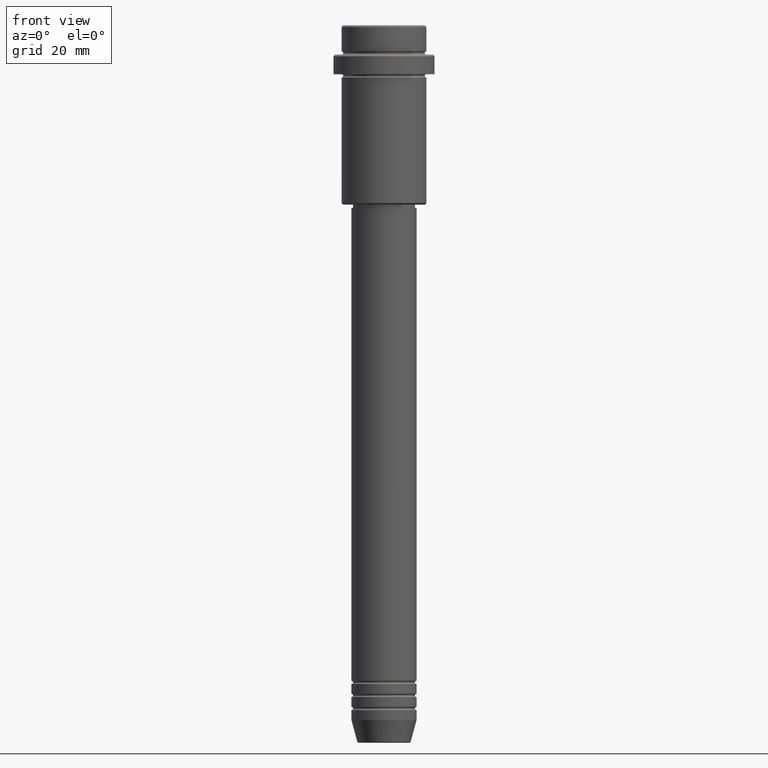
[diagram: clean part render]
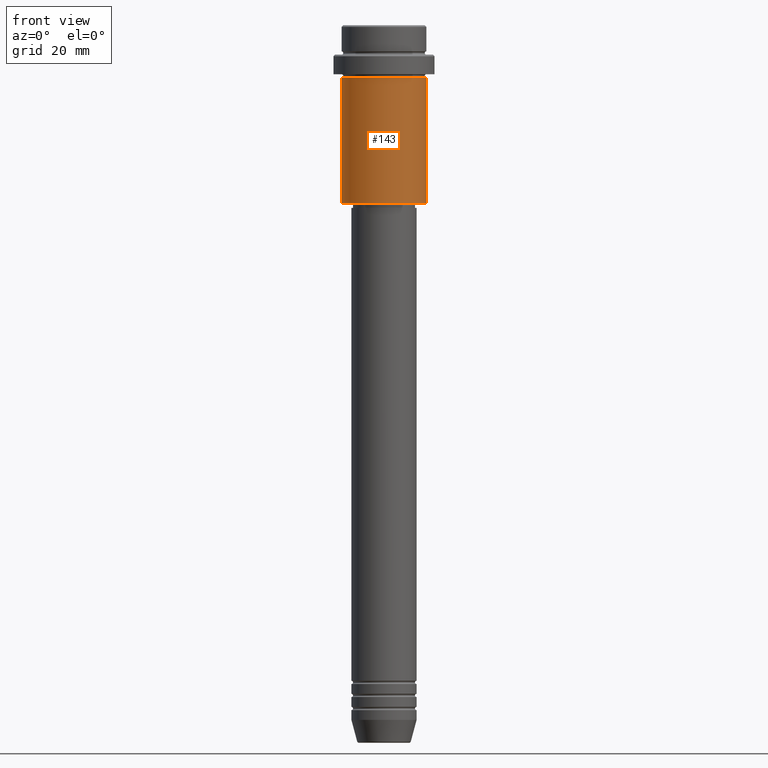
[diagram: same view with one face highlighted and labeled with its STEP entity id]
A machine part, front view. The second image highlights one B-rep face of the part: STEP entity #143.
In plain terms, the highlighted cylindrical surface (partial cylindrical patch) has radius 13 mm, axis along (-0, -0, 1).
Its self-contained STEP definition (entity closure, byte-faithful):
#24 = EDGE_CURVE ( 'NONE', #1273, #68, #181, .T. ) ;
#64 = DIRECTION ( 'NONE',  ( 1.000000000000000000, 0.000000000000000000, 0.000000000000000000 ) ) ;
#68 = VERTEX_POINT ( 'NONE', #608 ) ;
#84 = DIRECTION ( 'NONE',  ( -0.000000000000000000, -0.000000000000000000, 1.000000000000000000 ) ) ;
#96 = LINE ( 'NONE', #636, #994 ) ;
#110 = DIRECTION ( 'NONE',  ( -0.000000000000000000, -0.000000000000000000, 1.000000000000000000 ) ) ;
#143 = ADVANCED_FACE ( 'NONE', ( #309 ), #1172, .T. ) ;
#176 = ORIENTED_EDGE ( 'NONE', *, *, #24, .F. ) ;
#181 = LINE ( 'NONE', #1234, #1235 ) ;
#196 = CARTESIAN_POINT ( 'NONE',  ( 0.000000000000000000, 0.000000000000000000, 0.000000000000000000 ) ) ;
#257 = CARTESIAN_POINT ( 'NONE',  ( 0.000000000000000000, 0.000000000000000000, -54.50000000000002132 ) ) ;
#260 = CIRCLE ( 'NONE', #1092, 13.00000000000000000 ) ;
#290 = ORIENTED_EDGE ( 'NONE', *, *, #674, .F. ) ;
#300 = DIRECTION ( 'NONE',  ( -0.000000000000000000, -0.000000000000000000, 1.000000000000000000 ) ) ;
#309 = FACE_OUTER_BOUND ( 'NONE', #915, .T. ) ;
#383 = DIRECTION ( 'NONE',  ( -1.000000000000000000, 0.000000000000000000, 0.000000000000000000 ) ) ;
#421 = AXIS2_PLACEMENT_3D ( 'NONE', #196, #84, #64 ) ;
#573 = EDGE_CURVE ( 'NONE', #862, #870, #96, .T. ) ;
#581 = DIRECTION ( 'NONE',  ( -0.000000000000000000, -0.000000000000000000, 1.000000000000000000 ) ) ;
#608 = CARTESIAN_POINT ( 'NONE',  ( -13.00000000000000000, 1.592040838891559095E-15, -16.00000000000000000 ) ) ;
#636 = CARTESIAN_POINT ( 'NONE',  ( 13.00000000000000000, 0.000000000000000000, 0.000000000000000000 ) ) ;
#674 = EDGE_CURVE ( 'NONE', #68, #870, #1036, .T. ) ;
#683 = DIRECTION ( 'NONE',  ( -0.000000000000000000, -0.000000000000000000, 1.000000000000000000 ) ) ;
#862 = VERTEX_POINT ( 'NONE', #1128 ) ;
#870 = VERTEX_POINT ( 'NONE', #902 ) ;
#892 = EDGE_CURVE ( 'NONE', #1273, #862, #260, .T. ) ;
#902 = CARTESIAN_POINT ( 'NONE',  ( 13.00000000000000000, 0.000000000000000000, -16.00000000000000000 ) ) ;
#915 = EDGE_LOOP ( 'NONE', ( #176, #1249, #1324, #290 ) ) ;
#994 = VECTOR ( 'NONE', #300, 1000.000000000000000 ) ;
#1036 = CIRCLE ( 'NONE', #1091, 13.00000000000000000 ) ;
#1091 = AXIS2_PLACEMENT_3D ( 'NONE', #1206, #110, #1214 ) ;
#1092 = AXIS2_PLACEMENT_3D ( 'NONE', #257, #683, #383 ) ;
#1128 = CARTESIAN_POINT ( 'NONE',  ( 13.00000000000000000, 0.000000000000000000, -54.50000000000002132 ) ) ;
#1172 = CYLINDRICAL_SURFACE ( 'NONE', #421, 13.00000000000000000 ) ;
#1206 = CARTESIAN_POINT ( 'NONE',  ( 0.000000000000000000, 0.000000000000000000, -16.00000000000000000 ) ) ;
#1214 = DIRECTION ( 'NONE',  ( 1.000000000000000000, 0.000000000000000000, 0.000000000000000000 ) ) ;
#1234 = CARTESIAN_POINT ( 'NONE',  ( -13.00000000000000000, 1.592040838891559095E-15, 0.000000000000000000 ) ) ;
#1235 = VECTOR ( 'NONE', #581, 1000.000000000000000 ) ;
#1249 = ORIENTED_EDGE ( 'NONE', *, *, #892, .T. ) ;
#1273 = VERTEX_POINT ( 'NONE', #1347 ) ;
#1324 = ORIENTED_EDGE ( 'NONE', *, *, #573, .T. ) ;
#1347 = CARTESIAN_POINT ( 'NONE',  ( -13.00000000000000000, 1.592040838891559095E-15, -54.50000000000002132 ) ) ;